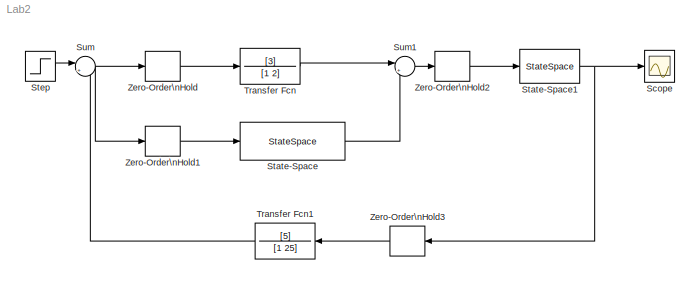
MODEL Lab2
KIND model
BLOCK [Scope] Scope
  Floating = off
  NumInputPorts = 1
  Ports = [1]
  SID = 1
  ScopeSpecificationString = Simulink.scopes.TimeScopeBlockCfg('CurrentConfiguration', extmgr.ConfigurationSet(extmgr.Configuration('Core','General UI',true),extmgr.Configuration('Core','Source UI',true),extmgr.Configuration('Sources','WiredSimulink',true,'DataLoggingSaveFormat','StructureWithTime','DataLoggingLimitDataPoints',true,'DataLoggingDecimation','1','DataLoggingDecimateData',true,'SampleTime','0.01'),extmgr.Configur...<+1910ch>
BLOCK [StateSpace] State-Space
  A = [1 -1;-3 5]
  B = [-3;-4]
  C = [1 -2]
  D = 0
  InitialCondition = 0
  Ports = [1, 1]
  SID = 2
BLOCK [StateSpace] State-Space1
  A = [1 -4 5; -1 7 -1;1 3 4]
  B = [1;2;1]
  C = [1 -1 1]
  D = 0
  InitialCondition = 0
  Ports = [1, 1]
  SID = 3
BLOCK [Step] Step
  After = 0.25
  SID = 4
  SampleTime = 0
  Time = 0
BLOCK [Sum] Sum
  IconShape = round
  InputSameDT = off
  Inputs = |+-
  OutDataTypeStr = Inherit: Inherit via internal rule
  Ports = [2, 1]
  SID = 5
  SaturateOnIntegerOverflow = off
BLOCK [Sum] Sum1
  IconShape = round
  InputSameDT = off
  Inputs = |++
  OutDataTypeStr = Inherit: Inherit via internal rule
  Ports = [2, 1]
  SID = 6
  SaturateOnIntegerOverflow = off
BLOCK [TransferFcn] Transfer Fcn
  Denominator = [1 2]
  Numerator = [3]
  SID = 7
BLOCK [TransferFcn] Transfer Fcn1
  Denominator = [1 25]
  Numerator = [5]
  SID = 8
BLOCK [ZeroOrderHold] Zero-Order\nHold
  SID = 9
  SampleTime = 0.01
BLOCK [ZeroOrderHold] Zero-Order\nHold1
  SID = 10
  SampleTime = 0.01
BLOCK [ZeroOrderHold] Zero-Order\nHold2
  SID = 11
  SampleTime = 0.01
BLOCK [ZeroOrderHold] Zero-Order\nHold3
  SID = 12
  SampleTime = 0.01
NET State-Space1:1 -> Scope:1, Zero-Order\nHold3:1
LINE State-Space:1 -> Sum1:2
LINE Step:1 -> Sum:1
LINE Sum1:1 -> Zero-Order\nHold2:1
NET Sum:1 -> Zero-Order\nHold1:1, Zero-Order\nHold:1
LINE Transfer Fcn1:1 -> Sum:2
LINE Transfer Fcn:1 -> Sum1:1
LINE Zero-Order\nHold1:1 -> State-Space:1
LINE Zero-Order\nHold2:1 -> State-Space1:1
LINE Zero-Order\nHold3:1 -> Transfer Fcn1:1
LINE Zero-Order\nHold:1 -> Transfer Fcn:1
note: NET lines group one-source signal fan-out (src -> all destinations, sorted); 1:1 wires keep LINE
